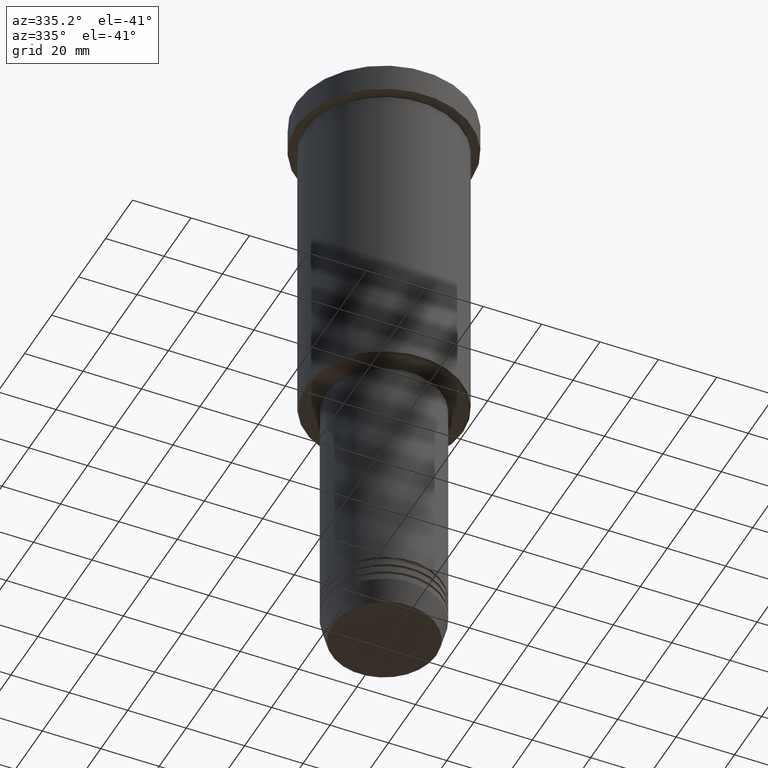
[diagram: clean part render]
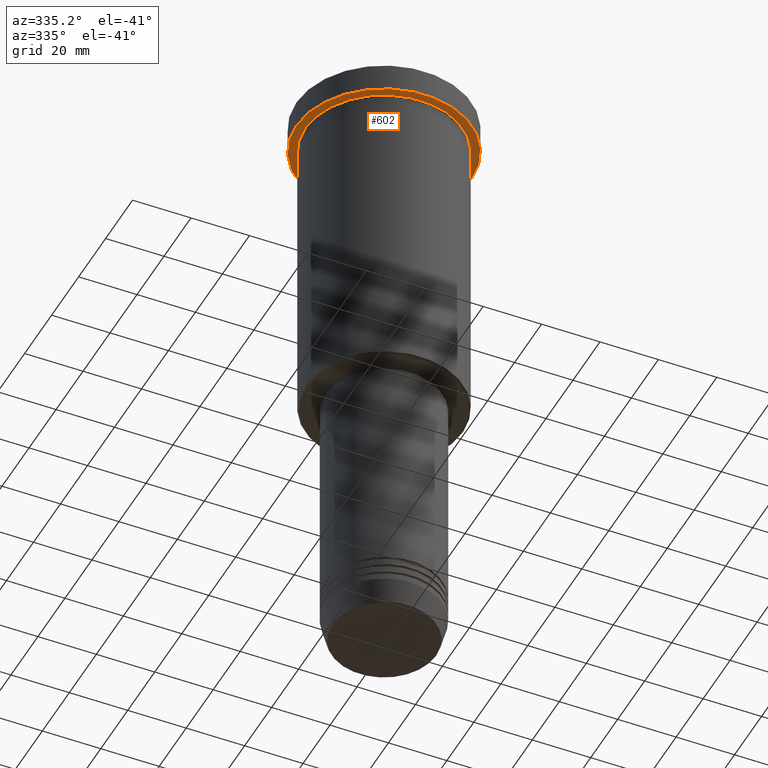
[diagram: same view with one face highlighted and labeled with its STEP entity id]
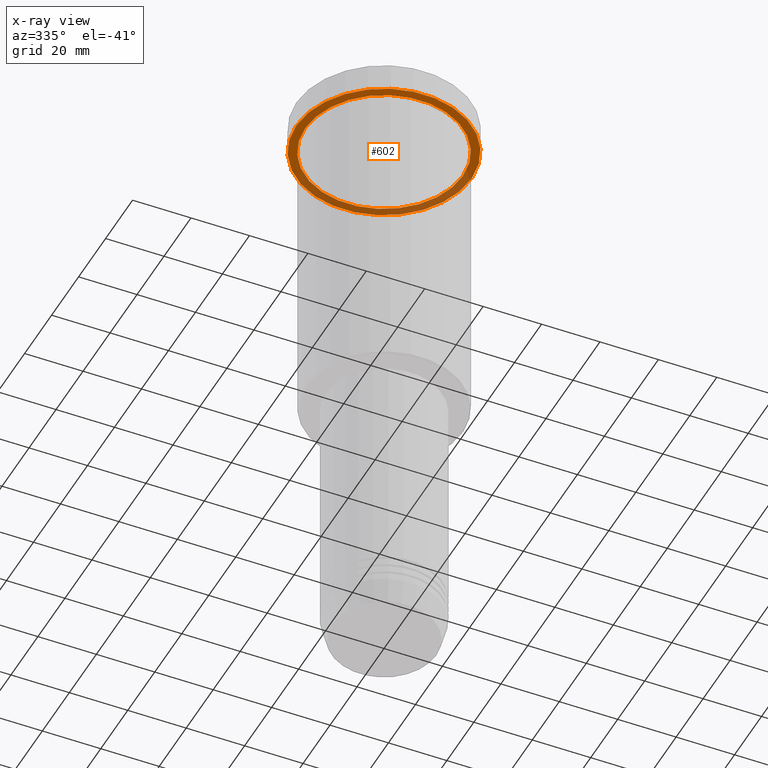
[diagram: x-ray of the same camera — body ghosted, the highlighted face saturated]
A machine part, auxiliary view. The second image highlights one B-rep face of the part: STEP entity #602.
The next image is the same camera in x-ray: the body ghosted, the highlighted face saturated — about 38% of this face is hidden behind the body in this view.
In plain terms, the highlighted planar face has unit normal (0, 0, -1).
Its self-contained STEP definition (entity closure, byte-faithful):
#18 = DIRECTION ( 'NONE',  ( -1.000000000000000000, 0.000000000000000000, -0.000000000000000000 ) ) ;
#47 = CARTESIAN_POINT ( 'NONE',  ( 30.00000000000000000, 0.000000000000000000, -9.999999999999992895 ) ) ;
#66 = CARTESIAN_POINT ( 'NONE',  ( 0.000000000000000000, 0.000000000000000000, -9.999999999999992895 ) ) ;
#82 = ORIENTED_EDGE ( 'NONE', *, *, #497, .T. ) ;
#118 = DIRECTION ( 'NONE',  ( -1.000000000000000000, 0.000000000000000000, 0.000000000000000000 ) ) ;
#123 = FACE_BOUND ( 'NONE', #824, .T. ) ;
#176 = CARTESIAN_POINT ( 'NONE',  ( -27.00000000000000355, 0.000000000000000000, -9.999999999999992895 ) ) ;
#195 = EDGE_LOOP ( 'NONE', ( #341, #1015 ) ) ;
#207 = AXIS2_PLACEMENT_3D ( 'NONE', #66, #1025, #118 ) ;
#234 = DIRECTION ( 'NONE',  ( -0.000000000000000000, -0.000000000000000000, 1.000000000000000000 ) ) ;
#273 = DIRECTION ( 'NONE',  ( -0.000000000000000000, -0.000000000000000000, 1.000000000000000000 ) ) ;
#305 = DIRECTION ( 'NONE',  ( 0.000000000000000000, 0.000000000000000000, -1.000000000000000000 ) ) ;
#320 = CIRCLE ( 'NONE', #1175, 30.00000000000000000 ) ;
#341 = ORIENTED_EDGE ( 'NONE', *, *, #710, .F. ) ;
#384 = CARTESIAN_POINT ( 'NONE',  ( 0.000000000000000000, 30.00000000000000000, -9.999999999999992895 ) ) ;
#447 = CARTESIAN_POINT ( 'NONE',  ( 27.00000000000000355, 3.306546357697854128E-15, -9.999999999999992895 ) ) ;
#467 = PLANE ( 'NONE',  #614 ) ;
#491 = DIRECTION ( 'NONE',  ( -1.000000000000000000, 0.000000000000000000, 0.000000000000000000 ) ) ;
#496 = CARTESIAN_POINT ( 'NONE',  ( 0.000000000000000000, 0.000000000000000000, -9.999999999999992895 ) ) ;
#497 = EDGE_CURVE ( 'NONE', #947, #803, #963, .T. ) ;
#500 = DIRECTION ( 'NONE',  ( -0.000000000000000000, -0.000000000000000000, 1.000000000000000000 ) ) ;
#580 = CIRCLE ( 'NONE', #779, 27.00000000000000355 ) ;
#602 = ADVANCED_FACE ( 'NONE', ( #123, #1108 ), #467, .T. ) ;
#614 = AXIS2_PLACEMENT_3D ( 'NONE', #384, #305, #18 ) ;
#700 = VERTEX_POINT ( 'NONE', #950 ) ;
#710 = EDGE_CURVE ( 'NONE', #750, #700, #1042, .T. ) ;
#750 = VERTEX_POINT ( 'NONE', #47 ) ;
#779 = AXIS2_PLACEMENT_3D ( 'NONE', #798, #500, #491 ) ;
#785 = DIRECTION ( 'NONE',  ( 1.000000000000000000, 0.000000000000000000, 0.000000000000000000 ) ) ;
#798 = CARTESIAN_POINT ( 'NONE',  ( 0.000000000000000000, 0.000000000000000000, -9.999999999999992895 ) ) ;
#800 = CARTESIAN_POINT ( 'NONE',  ( 0.000000000000000000, 0.000000000000000000, -9.999999999999992895 ) ) ;
#803 = VERTEX_POINT ( 'NONE', #176 ) ;
#817 = ORIENTED_EDGE ( 'NONE', *, *, #1105, .T. ) ;
#824 = EDGE_LOOP ( 'NONE', ( #817, #82 ) ) ;
#841 = EDGE_CURVE ( 'NONE', #700, #750, #320, .T. ) ;
#947 = VERTEX_POINT ( 'NONE', #447 ) ;
#950 = CARTESIAN_POINT ( 'NONE',  ( -30.00000000000000000, 3.673940397442059178E-15, -9.999999999999992895 ) ) ;
#963 = CIRCLE ( 'NONE', #207, 27.00000000000000355 ) ;
#1015 = ORIENTED_EDGE ( 'NONE', *, *, #841, .F. ) ;
#1025 = DIRECTION ( 'NONE',  ( -0.000000000000000000, -0.000000000000000000, 1.000000000000000000 ) ) ;
#1042 = CIRCLE ( 'NONE', #1173, 30.00000000000000000 ) ;
#1105 = EDGE_CURVE ( 'NONE', #803, #947, #580, .T. ) ;
#1108 = FACE_OUTER_BOUND ( 'NONE', #195, .T. ) ;
#1166 = DIRECTION ( 'NONE',  ( 1.000000000000000000, 0.000000000000000000, 0.000000000000000000 ) ) ;
#1173 = AXIS2_PLACEMENT_3D ( 'NONE', #496, #234, #785 ) ;
#1175 = AXIS2_PLACEMENT_3D ( 'NONE', #800, #273, #1166 ) ;